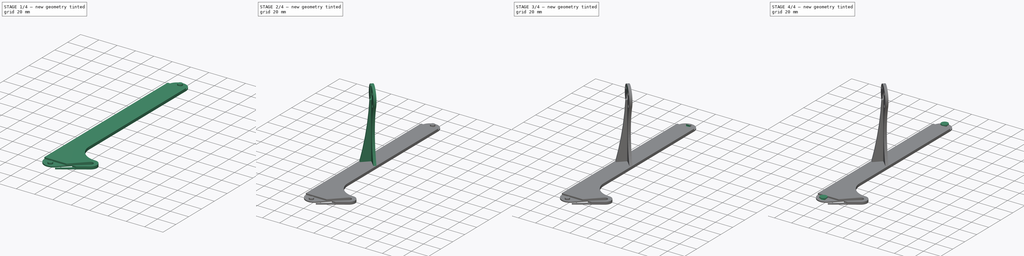
[diagram: build sequence overview — one tinted view per stage of 4, left to right]
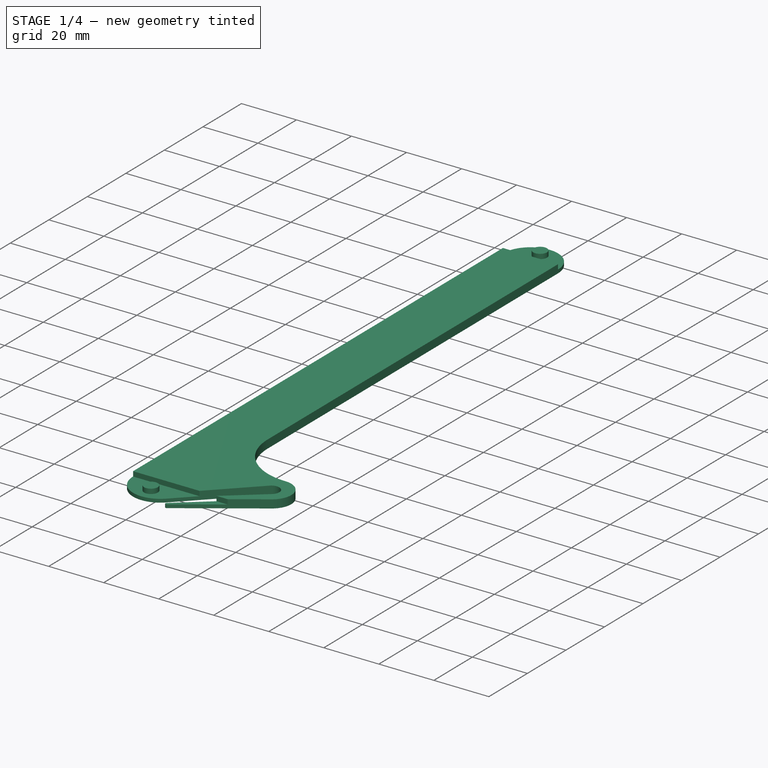
[diagram: stage 1 of 4 — iso view after this stage's code; geometry added in this stage tinted green]
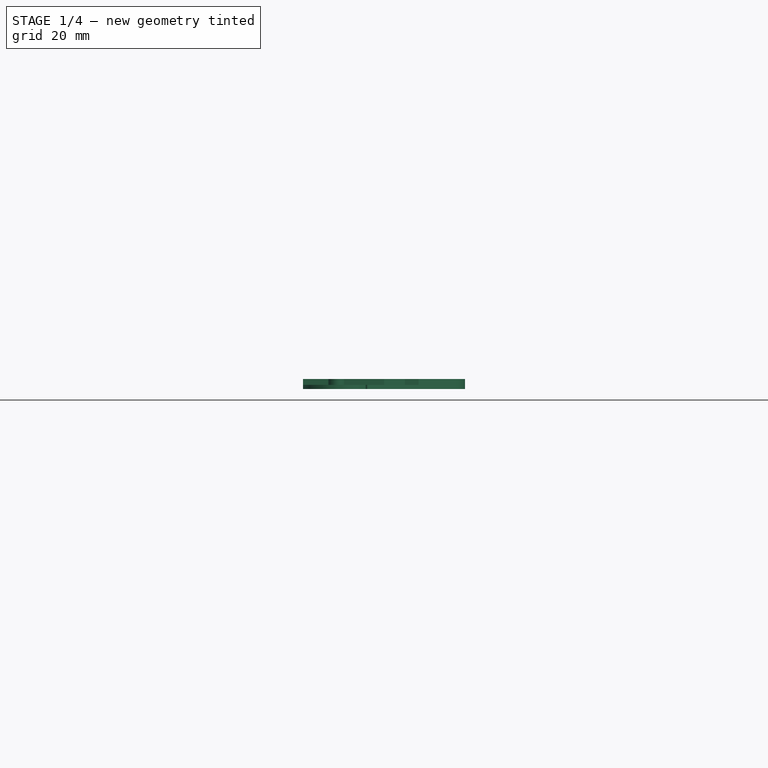
[diagram: stage 1 of 4 — front view after this stage's code; geometry added in this stage tinted green]
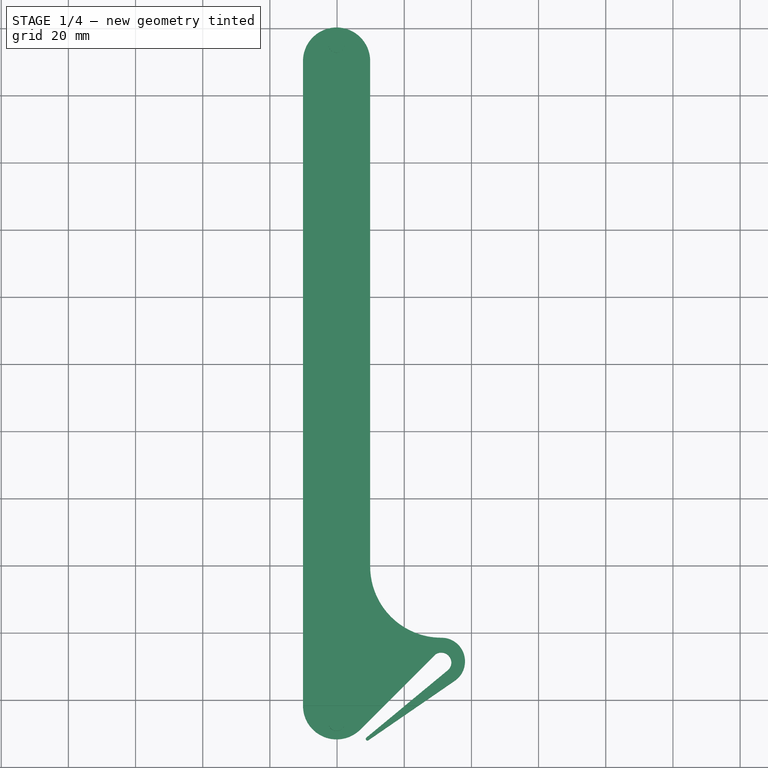
[diagram: stage 1 of 4 — top view after this stage's code; geometry added in this stage tinted green]
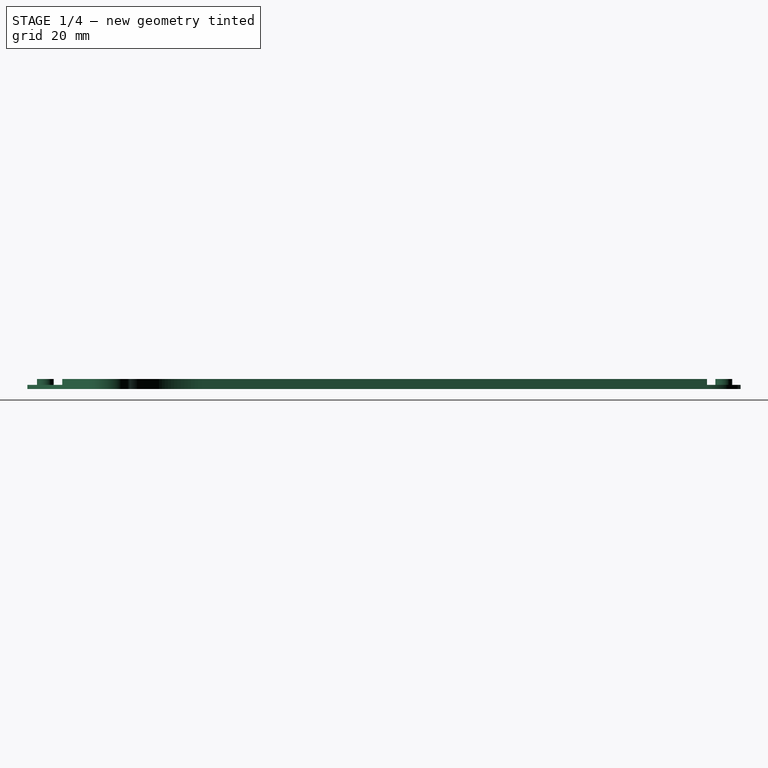
[diagram: stage 1 of 4 — right view after this stage's code; geometry added in this stage tinted green]
FCSTD DOCUMENT  (FreeCAD 0.16R6706 (Git))
Label: montant_00
License: All rights reserved
LicenseURL: http://en.wikipedia.org/wiki/All_rights_reserved
objects: Sketcher::SketchObject×11, PartDesign::Pocket×7, PartDesign::Pad×4
note: 33 computed .brp shape members not serialized (recipe doc carries the construction recipe); baked Part::Feature solids carry a one-line shape summary decoded from their .brp

FEATURE [Sketcher::SketchObject] Sketch
  sketch-geometry (16):
    g0: LineSegment StartX=69.8529 StartY=90.3023 StartZ=0 EndX=69.8529 EndY=-60.2396 EndZ=0
    g1: LineSegment StartX=49.8529 StartY=-101.698 StartZ=0 EndX=49.8529 EndY=90.3023 EndZ=0
    g2: ArcOfCircle CenterX=59.8529 CenterY=90.3023 CenterZ=0 NormalX=0 NormalY=0 NormalZ=1 Radius=10 StartAngle=6.28319 EndAngle=9.42478
    g3: ArcOfCircle CenterX=59.8529 CenterY=-101.698 CenterZ=0 NormalX=0 NormalY=0 NormalZ=1 Radius=10 StartAngle=3.14159 EndAngle=5.49779
    g4: LineSegment [constr] StartX=69.8529 StartY=-60.2396 StartZ=0 EndX=91.0776 EndY=-81.4643 EndZ=0
    g5: LineSegment StartX=66.924 StartY=-108.769 StartZ=0 EndX=89.2285 EndY=-86.4643 EndZ=0
    g6: LineSegment StartX=68.721 StartY=-111.171 StartZ=0 EndX=92.8225 EndY=-91.2688 EndZ=0
    g7: LineSegment [constr] StartX=66.924 StartY=-108.769 StartZ=0 EndX=68.721 EndY=-111.171 EndZ=0
    g8: LineSegment [constr] StartX=66.0255 StartY=-107.568 StartZ=0 EndX=91.0255 EndY=-88.8666 EndZ=0
    g9: LineSegment [constr] StartX=89.2285 StartY=-86.4643 StartZ=0 EndX=92.8225 EndY=-91.2688 EndZ=0
    g10: ArcOfCircle CenterX=91.0255 CenterY=-88.8666 CenterZ=0 NormalX=0 NormalY=0 NormalZ=1 Radius=3 StartAngle=5.35464 EndAngle=8.49623
    g11: LineSegment StartX=69.3235 StartY=-111.969 StartZ=0 EndX=95.0544 EndY=-94.2525 EndZ=0
    g12: ArcOfCircle CenterX=91.0776 CenterY=-60.2396 CenterZ=0 NormalX=0 NormalY=0 NormalZ=1 Radius=21.2247 StartAngle=3.14159 EndAngle=4.71239
    g13: LineSegment [constr] StartX=92.8225 StartY=-91.2688 StartZ=0 EndX=95.0544 EndY=-94.2525 EndZ=0
    g14: ArcOfCircle CenterX=91.0776 CenterY=-88.4768 CenterZ=0 NormalX=0 NormalY=0 NormalZ=1 Radius=7.01245 StartAngle=5.31538 EndAngle=7.85398
    g15: ArcOfCircle CenterX=69.0396 CenterY=-111.557 CenterZ=0 NormalX=0 NormalY=0 NormalZ=1 Radius=0.500476 StartAngle=2.26105 EndAngle=5.31538
  constraints (48):
    c: Vertical(g0)
    c: Vertical(g1)
    c: Radius(g2) = 10
    c: Coincident(g2,g1)
    c: Coincident(g2,g0)
    c: Radius(g3) = 10
    c: Coincident(g1,g3)
    c: DistanceY(g3,g2) = 192
    c: Coincident(g3,g5)
    c: Coincident(g4,g0)
    c: Angle(g5,g1) = 0.785398
    c: Tangent(g3,g1)
    c: Tangent(g2,g0)
    c: Tangent(g2,g1)
    c: Tangent(g5,g3)
    c: Coincident(g7,g3)
    c: Angle(g7,g8) = 1.5708
    c: PointOnObject(g8,g9)
    c: Angle(g8,g9) = 1.5708
    c: Distance(g6,g8) = 3
    c: Coincident(g6,g9)
    c: PointOnObject(g10,g5)
    c: Distance(g6,g10) = 6
    c: Coincident(g10,g8)
    c: Coincident(g10,g6)
    c: DistanceX(g8,g8) = 25
    c: PointOnObject(g8,g7)
    c: Distance(g8,g3) = 1.5
    c: Distance(g3,g7) = 3
    c: Coincident(g5,g9)
    c: Angle(g4,g0) = 2.35619
    c: Coincident(g12,g0)
    c: Angle(g11,g6) = 0.0872665
    c: PointOnObject(g13,g11)
    c: Coincident(g13,g6)
    c: Parallel(g13,g9)
    c: PointOnObject(g11,g13)
    c: Coincident(g4,g12)
    c: Tangent(g12,g0)
    c: Coincident(g14,g4)
    c: Coincident(g14,g11)
    c: Tangent(g12,g14)
    c: Tangent(g11,g14)
    c: Tangent(g6,g15) = 1.5708
    c: Tangent(g11,g15) = -1.5708
    c: Coincident(g6,g7)
    c: Distance(g6,g11) = 1
    c: DistanceY(g5,g4) = 5
FEATURE [PartDesign::Pad] Pad
  Length = 3
  Length2 = 100
  Sketch = -> Sketch
  Type = 0
FEATURE [Sketcher::SketchObject] Sketch001
  ExternalGeometry = -> [Pad]
  Placement = pos=(0,0,3) rot=(0,0,1;0rad)
  Support = -> Pad [Face13]
  sketch-geometry (3):
    g0: ArcOfCircle CenterX=59.8529 CenterY=90.3023 CenterZ=0 NormalX=0 NormalY=0 NormalZ=1 Radius=10 StartAngle=6.28319 EndAngle=9.42478
    g1: LineSegment StartX=49.8529 StartY=90.3023 StartZ=0 EndX=69.8529 EndY=90.3023 EndZ=0
    g2: Circle CenterX=59.8529 CenterY=95.3023 CenterZ=0 NormalX=0 NormalY=0 NormalZ=1 Radius=2.5
  constraints (8):
    c: Coincident(g0,g-3)
    c: Coincident(g0,g-3)
    c: Coincident(g-3,g0)
    c: Coincident(g1,g0)
    c: Coincident(g1,g0)
    c: DistanceY(g0,g2) = 5
    c: DistanceX(g2,g0) = 10
    c: Radius(g2) = 2.5
FEATURE [PartDesign::Pocket] Pocket
  Length = 1.75
  Sketch = -> Sketch001
  Type = 0
FEATURE [Sketcher::SketchObject] Sketch002
  ExternalGeometry = -> [Pocket]
  Placement = pos=(0,0,3) rot=(0,0,1;0rad)
  Support = -> Pocket [Face4]
  sketch-geometry (5):
    g0: LineSegment StartX=46.1193 StartY=-101.698 StartZ=0 EndX=86.9163 EndY=-101.698 EndZ=0
    g1: LineSegment StartX=86.9163 StartY=-101.698 StartZ=0 EndX=86.9163 EndY=-116.42 EndZ=0
    g2: LineSegment StartX=86.9163 StartY=-116.42 StartZ=0 EndX=46.1193 EndY=-116.42 EndZ=0
    g3: LineSegment StartX=46.1193 StartY=-116.42 StartZ=0 EndX=46.1193 EndY=-101.698 EndZ=0
    g4: Circle CenterX=59.8529 CenterY=-106.698 CenterZ=0 NormalX=0 NormalY=0 NormalZ=1 Radius=2.5
  constraints (12):
    c: Coincident(g0,g1)
    c: Coincident(g1,g2)
    c: Coincident(g2,g3)
    c: Coincident(g3,g0)
    c: Horizontal(g0)
    c: Horizontal(g2)
    c: Vertical(g1)
    c: Vertical(g3)
    c: PointOnObject(g-3,g0)
    c: DistanceY(g4,g-3) = 5
    c: DistanceX(g-3,g4) = 10
    c: Radius(g4) = 2.5
FEATURE [PartDesign::Pocket] Pocket001
  Length = 1.75
  Sketch = -> Sketch002
  Type = 0
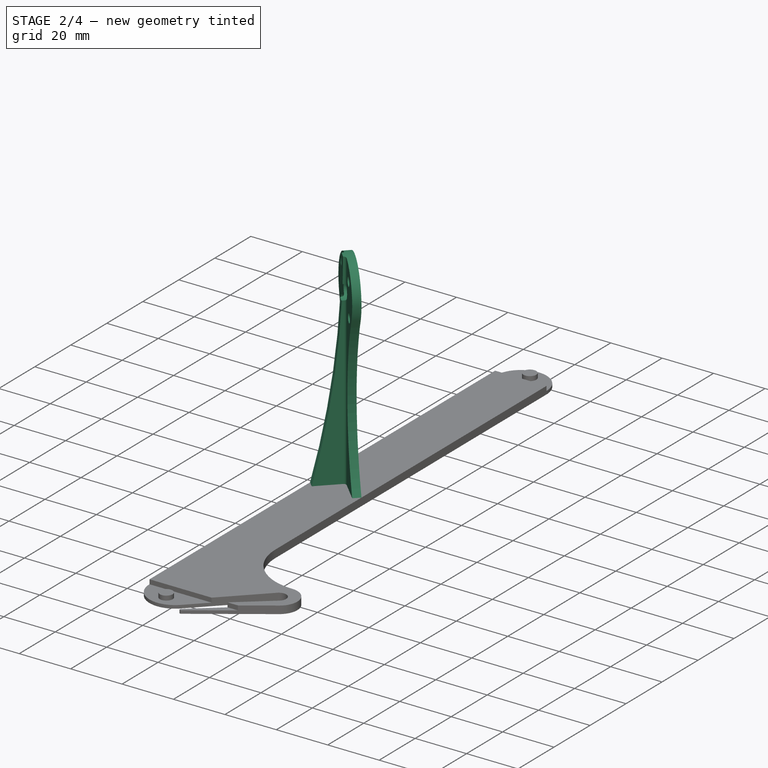
[diagram: stage 2 of 4 — iso view after this stage's code; geometry added in this stage tinted green]
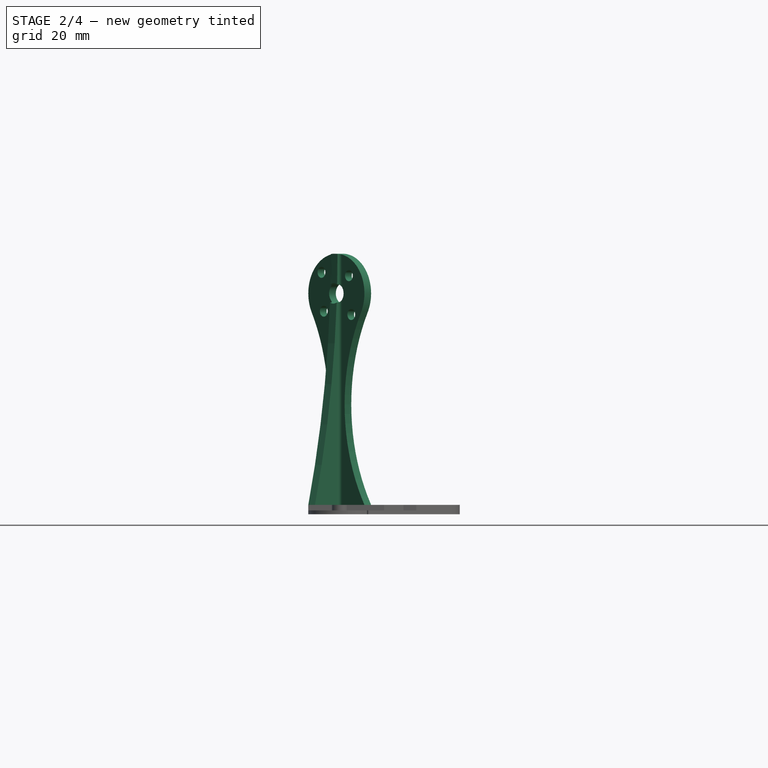
[diagram: stage 2 of 4 — front view after this stage's code; geometry added in this stage tinted green]
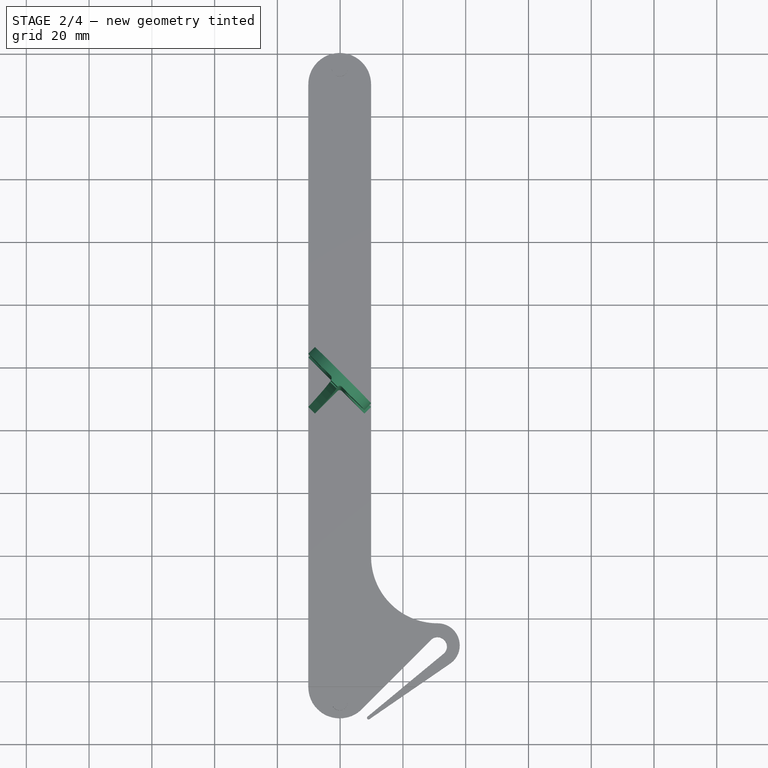
[diagram: stage 2 of 4 — top view after this stage's code; geometry added in this stage tinted green]
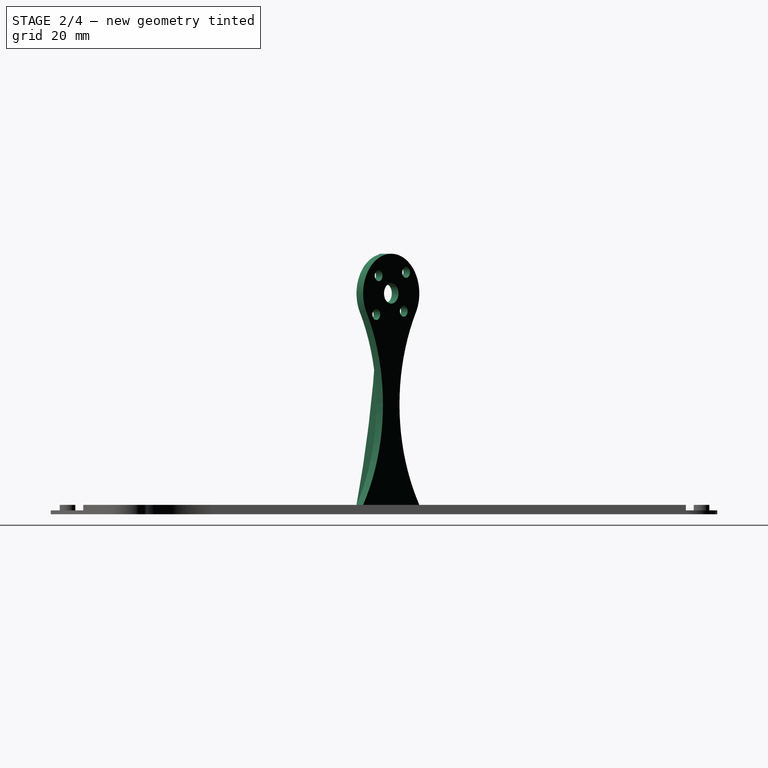
[diagram: stage 2 of 4 — right view after this stage's code; geometry added in this stage tinted green]
FEATURE [Sketcher::SketchObject] Sketch007
  ExternalGeometry = -> [Pocket001]
  Placement = pos=(0,0,3) rot=(0,0,1;0rad)
  Support = -> Pocket001 [Face4]
  sketch-geometry (14):
    g0: LineSegment StartX=51.9742 StartY=5.36292 StartZ=0 EndX=69.8529 EndY=-12.5158 EndZ=0
    g1: LineSegment StartX=69.8529 StartY=-12.5158 StartZ=0 EndX=67.7316 EndY=-14.6371 EndZ=0
    g2: LineSegment StartX=67.7316 StartY=-14.6371 StartZ=0 EndX=60.56 EndY=-7.46551 EndZ=0
    g3: LineSegment StartX=49.8529 StartY=3.2416 StartZ=0 EndX=51.9742 EndY=5.36292 EndZ=0
    g4: GeomPoint [constr] X=49.8529 Y=-5.69774 Z=0
    g5: LineSegment StartX=49.8529 StartY=-12.5158 StartZ=0 EndX=57.0245 EndY=-5.34419 EndZ=0
    g6: LineSegment StartX=51.9742 StartY=-14.6371 StartZ=0 EndX=59.1458 EndY=-7.46551 EndZ=0
    g7: LineSegment StartX=49.8529 StartY=-12.5158 StartZ=0 EndX=51.9742 EndY=-14.6371 EndZ=0
    g8: LineSegment [constr] StartX=50.9136 StartY=-13.5764 StartZ=0 EndX=60.9136 EndY=-3.57642 EndZ=0
    g9: GeomPoint [constr] X=58.7922 Y=-5.69774 Z=0
    g10: LineSegment [constr] StartX=49.8529 StartY=-5.69774 StartZ=0 EndX=58.7922 EndY=-5.69774 EndZ=0
    g11: LineSegment StartX=57.0245 StartY=-3.92998 StartZ=0 EndX=49.8529 EndY=3.2416 EndZ=0
    g12: ArcOfCircle CenterX=59.8529 CenterY=-8.17262 CenterZ=0 NormalX=0 NormalY=0 NormalZ=1 Radius=1 StartAngle=0.785398 EndAngle=2.35619
    g13: ArcOfCircle CenterX=56.3174 CenterY=-4.63708 CenterZ=0 NormalX=0 NormalY=0 NormalZ=1 Radius=1 StartAngle=5.49779 EndAngle=7.06858
  constraints (36):
    c: Coincident(g0,g1)
    c: Coincident(g1,g2)
    c: Coincident(g11,g3)
    c: Coincident(g3,g0)
    c: PointOnObject(g4,g-3)
    c: DistanceY(g-3,g-3) = 192
    c: DistanceY(g4,g-3) = 96
    c: PointOnObject(g11,g-3)
    c: Parallel(g0,g2)
    c: Parallel(g1,g3)
    c: Angle(g-3,g0) = 0.785398
    c: Angle(g3,g0) = 1.5708
    c: PointOnObject(g0,g-4)
    c: Coincident(g5,g7)
    c: Coincident(g6,g7)
    c: Symmetric(g5,g6,g8)
    c: Parallel(g6,g5)
    c: Distance(g5,g6) = 3
    c: Distance(g1,g0) = 3
    c: PointOnObject(g5,g-3)
    c: PointOnObject(g9,g2)
    c: PointOnObject(g9,g8)
    c: Symmetric(g1,g11,g8)
    c: Coincident(g10,g9)
    c: Coincident(g10,g4)
    c: Angle(g-3,g10) = 1.5708
    c: Tangent(g2,g11)
    c: Tangent(g2,g12) = -1.5708
    c: Tangent(g6,g12) = 1.5708
    c: Tangent(g11,g13) = -1.5708
    c: Tangent(g5,g13) = -1.5708
    c: Radius(g12) = 1
    c: Radius(g13) = 1
    c: Symmetric(g6,g5,g8)
    c: PointOnObject(g8,g7)
    c: PointOnObject(g8,g0)
FEATURE [PartDesign::Pad] Pad001
  Length = 80
  Length2 = 100
  Sketch = -> Sketch007
  Type = 0
FEATURE [Sketcher::SketchObject] Sketch004
  ExternalGeometry = -> [Pad001]
  Placement = pos=(28.6686,28.6686,0) rot=(0.281085,0.678598,0.678598;2.59356rad)
  Support = -> Pad001 [Face32]
  sketch-geometry (17):
    g0: LineSegment StartX=-75.5395 StartY=92.3788 StartZ=0 EndX=-18.7022 EndY=92.3788 EndZ=0
    g1: LineSegment StartX=-18.7022 StartY=92.3788 StartZ=0 EndX=-18.7022 EndY=3 EndZ=0
    g2: LineSegment StartX=-18.7022 StartY=3 StartZ=0 EndX=-32.9592 EndY=3 EndZ=0
    g3: LineSegment StartX=-75.5395 StartY=3 StartZ=0 EndX=-75.5395 EndY=92.3788 EndZ=0
    g4: ArcOfCircle CenterX=-45.6013 CenterY=70.3579 CenterZ=0 NormalX=0 NormalY=0 NormalZ=1 Radius=12.6421 StartAngle=5.78867 EndAngle=9.91929
    g5: ArcOfCircle CenterX=-111.168 CenterY=35.004 CenterZ=0 NormalX=0 NormalY=0 NormalZ=1 Radius=61.8492 StartAngle=5.73931 EndAngle=6.7777
    g6: ArcOfCircle CenterX=19.9659 CenterY=35.004 CenterZ=0 NormalX=0 NormalY=0 NormalZ=1 Radius=61.8491 StartAngle=2.64708 EndAngle=3.68546
    g7: Circle CenterX=-45.6013 CenterY=70.3579 CenterZ=0 NormalX=0 NormalY=0 NormalZ=1 Radius=3.25
    g8: Circle CenterX=-39.9445 CenterY=64.701 CenterZ=0 NormalX=0 NormalY=0 NormalZ=1 Radius=1.75
    g9: Circle CenterX=-38.8838 CenterY=77.0754 CenterZ=0 NormalX=0 NormalY=0 NormalZ=1 Radius=1.75
    g10: Circle CenterX=-51.2582 CenterY=76.0147 CenterZ=0 NormalX=0 NormalY=0 NormalZ=1 Radius=1.75
    g11: Circle CenterX=-52.3188 CenterY=63.6403 CenterZ=0 NormalX=0 NormalY=0 NormalZ=1 Radius=1.75
    g12: LineSegment [constr] StartX=-45.6013 StartY=70.3579 StartZ=0 EndX=-38.8838 EndY=77.0754 EndZ=0
    g13: LineSegment [constr] StartX=-45.6013 StartY=70.3579 StartZ=0 EndX=-52.3188 EndY=63.6403 EndZ=0
    g14: LineSegment [constr] StartX=-45.6013 StartY=70.3579 StartZ=0 EndX=-39.9445 EndY=64.701 EndZ=0
    g15: LineSegment [constr] StartX=-45.6013 StartY=70.3579 StartZ=0 EndX=-51.2582 EndY=76.0147 EndZ=0
    g16: LineSegment StartX=-58.2434 StartY=3 StartZ=0 EndX=-75.5395 EndY=3 EndZ=0
  constraints (47):
    c: Coincident(g0,g1)
    c: Coincident(g1,g2)
    c: Coincident(g16,g3)
    c: Coincident(g3,g0)
    c: Horizontal(g0)
    c: Horizontal(g2)
    c: Vertical(g1)
    c: Vertical(g3)
    c: Coincident(g5,g4)
    c: Coincident(g6,g4)
    c: DistanceY(g4,g4) = 6
    c: DistanceY(g4,g4) = 6
    c: Tangent(g5,g4)
    c: Tangent(g6,g4)
    c: Coincident(g7,g4)
    c: Radius(g7) = 3.25
    c: Radius(g8) = 1.75
    c: Equal(g8,g9) = 1.75
    c: Equal(g8,g11) = 1.75
    c: Coincident(g13,g15)
    c: Coincident(g13,g4)
    c: Coincident(g13,g12)
    c: Coincident(g13,g14)
    c: Coincident(g14,g8)
    c: Coincident(g9,g12)
    c: Coincident(g10,g15)
    c: Coincident(g11,g13)
    c: Angle(g13,g14) = 1.5708
    c: Angle(g14,g12) = 1.5708
    c: Angle(g12,g15) = 1.5708
    c: Distance(g12) = 9.5
    c: Distance(g13) = 9.5
    c: Distance(g15) = 8
    c: Distance(g14) = 8
    c: PointOnObject(g2,g6)
    c: PointOnObject(g16,g5)
    c: Tangent(g2,g16)
    c: Tangent(g4,g-3)
    c: Tangent(g4,g-4)
    c: Tangent(g4,g-5)
    c: Angle(g-4,g15) = 0.785398
    c: Radius(g10) = 1.75
    c: Coincident(g5,g-4)
    c: Coincident(g16,g5)
    c: Coincident(g6,g-5)
    c: Distance(g0) = 56.8373
    c: DistanceX(g-5,g0) = 14.257
FEATURE [PartDesign::Pocket] Pocket002
  Length = 10
  Sketch = -> Sketch004
  Type = 0
FEATURE [Sketcher::SketchObject] Sketch005
  Placement = pos=(33.3057,-33.3057,0) rot=(0.862856,0.357407,0.357407;1.71777rad)
  Support = -> Pocket002 [Face26]
  sketch-geometry (4):
    g0: LineSegment StartX=23.5109 StartY=83.5 StartZ=0 EndX=26.4013 EndY=3 EndZ=0
    g1: ArcOfCircle CenterX=-283.339 CenterY=82.9107 CenterZ=0 NormalX=0 NormalY=0 NormalZ=1 Radius=319.882 StartAngle=6.0307 EndAngle=6.28319
    g2: LineSegment StartX=36.5435 StartY=82.9107 StartZ=0 EndX=36.5435 EndY=83.5 EndZ=0
    g3: LineSegment StartX=36.5435 StartY=83.5 StartZ=0 EndX=23.5109 EndY=83.5 EndZ=0
  constraints (7):
    c: Coincident(g1,g0)
    c: Coincident(g2,g3)
    c: Horizontal(g3)
    c: Vertical(g2)
    c: Coincident(g0,g3)
    c: Coincident(g1,g2)
    c: Tangent(g1,g2)
FEATURE [PartDesign::Pocket] Pocket003
  Length = 10
  Sketch = -> Sketch005
  Type = 0
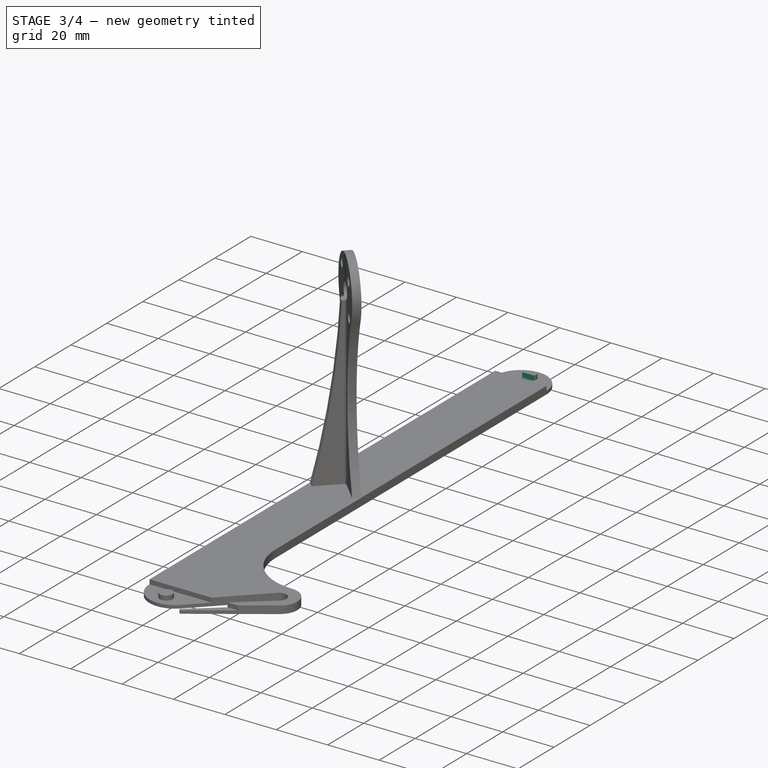
[diagram: stage 3 of 4 — iso view after this stage's code; geometry added in this stage tinted green]
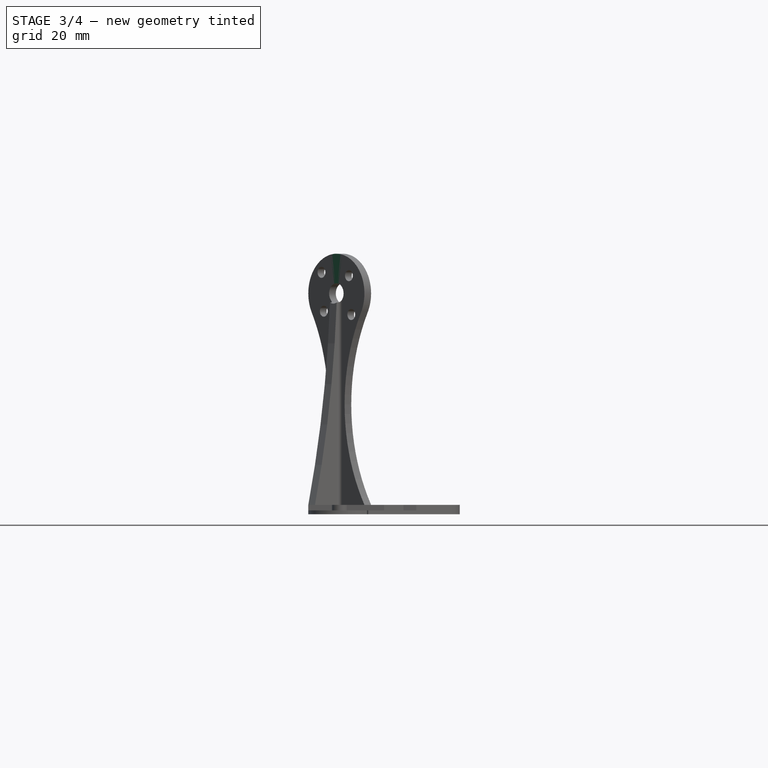
[diagram: stage 3 of 4 — front view after this stage's code; geometry added in this stage tinted green]
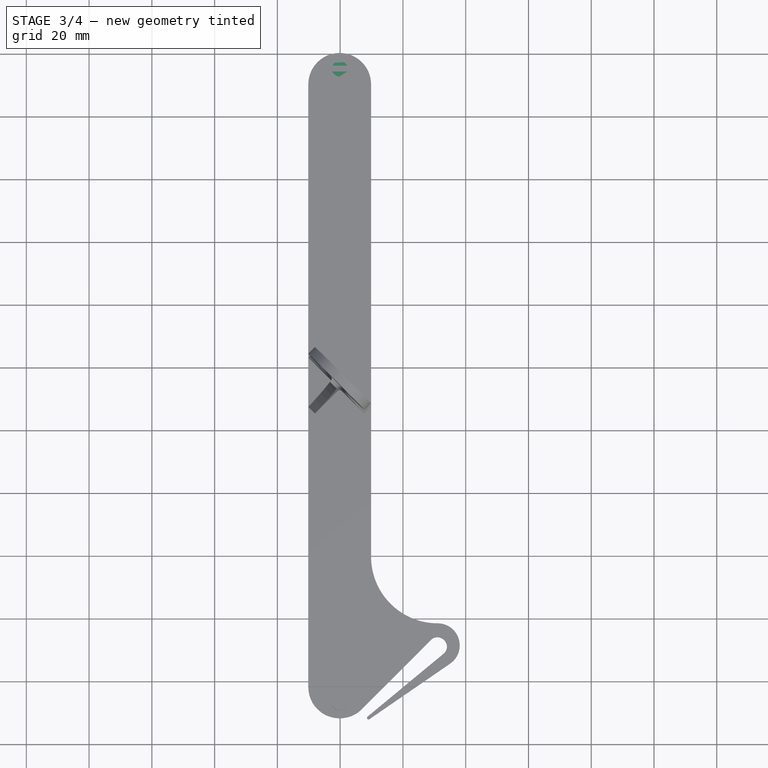
[diagram: stage 3 of 4 — top view after this stage's code; geometry added in this stage tinted green]
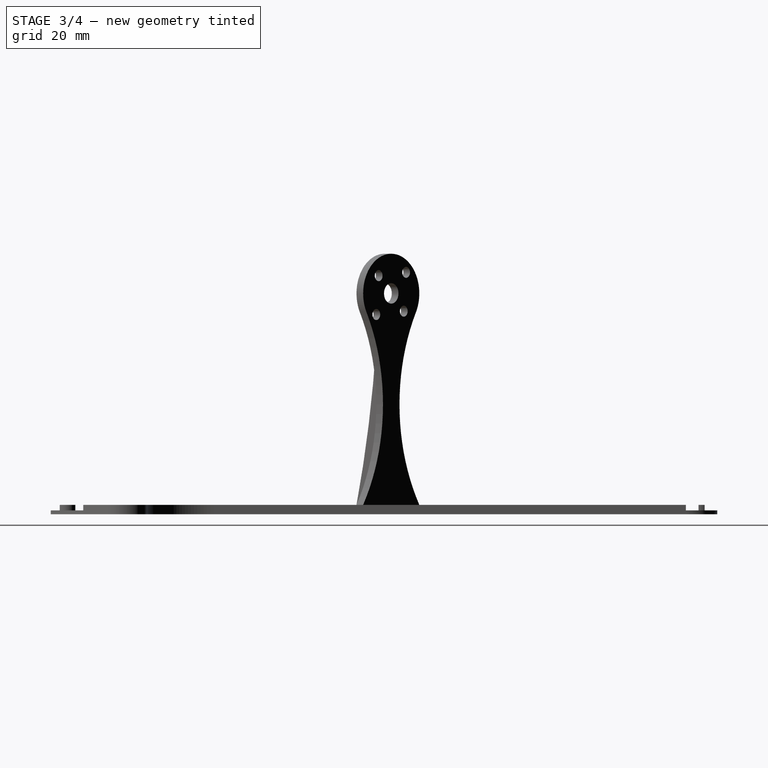
[diagram: stage 3 of 4 — right view after this stage's code; geometry added in this stage tinted green]
FEATURE [Sketcher::SketchObject] Sketch006
  ExternalGeometry = -> [Pocket003]
  Placement = pos=(26.5473,26.5473,0) rot=(0.862856,-0.357407,-0.357407;1.71777rad)
  Support = -> Pocket003 [Face30]
  sketch-geometry (4):
    g0: LineSegment StartX=31.3897 StartY=85.639 StartZ=0 EndX=59.7776 EndY=85.639 EndZ=0
    g1: LineSegment StartX=59.7776 StartY=85.639 StartZ=0 EndX=59.7776 EndY=70.3579 EndZ=0
    g2: LineSegment StartX=59.7776 StartY=70.3579 StartZ=0 EndX=31.3897 EndY=70.3579 EndZ=0
    g3: LineSegment StartX=31.3897 StartY=70.3579 StartZ=0 EndX=31.3897 EndY=85.639 EndZ=0
  constraints (9):
    c: Coincident(g0,g1)
    c: Coincident(g1,g2)
    c: Coincident(g2,g3)
    c: Coincident(g3,g0)
    c: Horizontal(g0)
    c: Horizontal(g2)
    c: Vertical(g1)
    c: Vertical(g3)
    c: PointOnObject(g-3,g2)
FEATURE [PartDesign::Pocket] Pocket004
  Length = 5
  Reversed = true
  Sketch = -> Sketch006
  Type = 0
FEATURE [Sketcher::SketchObject] Sketch008
  ExternalGeometry = -> [Pocket004]
  Placement = pos=(0,0,3) rot=(0,0,1;0rad)
  Support = -> Pocket004 [Face48]
  sketch-geometry (7):
    g0: LineSegment StartX=57.5432 StartY=96.259 StartZ=0 EndX=62.1626 EndY=96.259 EndZ=0
    g1: LineSegment StartX=57.5432 StartY=94.3455 StartZ=0 EndX=62.1626 EndY=94.3455 EndZ=0
    g2: LineSegment [constr] StartX=57.3529 StartY=95.3023 StartZ=0 EndX=62.3529 EndY=95.3023 EndZ=0
    g3: LineSegment [constr] StartX=59.8529 StartY=95.3023 StartZ=0 EndX=57.5432 EndY=96.259 EndZ=0
    g4: LineSegment [constr] StartX=59.8529 StartY=95.3023 StartZ=0 EndX=57.5432 EndY=94.3455 EndZ=0
    g5: ArcOfCircle CenterX=59.8529 CenterY=95.3023 CenterZ=0 NormalX=0 NormalY=0 NormalZ=1 Radius=2.5 StartAngle=0.392699 EndAngle=2.74889
    g6: ArcOfCircle CenterX=59.8529 CenterY=95.3023 CenterZ=0 NormalX=0 NormalY=0 NormalZ=1 Radius=2.5 StartAngle=3.53429 EndAngle=5.89049
  constraints (24):
    c: Radius(g-3) = 2.5
    c: PointOnObject(g0,g-3)
    c: PointOnObject(g1,g-3)
    c: PointOnObject(g0,g-3)
    c: PointOnObject(g1,g-3)
    c: Parallel(g1,g-4)
    c: Parallel(g0,g1)
    c: PointOnObject(g-3,g2)
    c: PointOnObject(g2,g-3)
    c: PointOnObject(g2,g-3)
    c: Parallel(g2,g0)
    c: Symmetric(g1,g0,g2)
    c: Symmetric(g0,g1,g2)
    c: Coincident(g4,g3)
    c: Coincident(g-3,g3)
    c: Coincident(g0,g3)
    c: Coincident(g1,g4)
    c: Angle(g3,g4) = 0.785398
    c: Coincident(g5,g0)
    c: Coincident(g5,g0)
    c: Radius(g5) = 2.5
    c: Radius(g6) = 2.5
    c: Coincident(g6,g1)
    c: Coincident(g6,g1)
FEATURE [PartDesign::Pocket] Pocket005
  Length = 1.75
  Sketch = -> Sketch008
  Type = 0
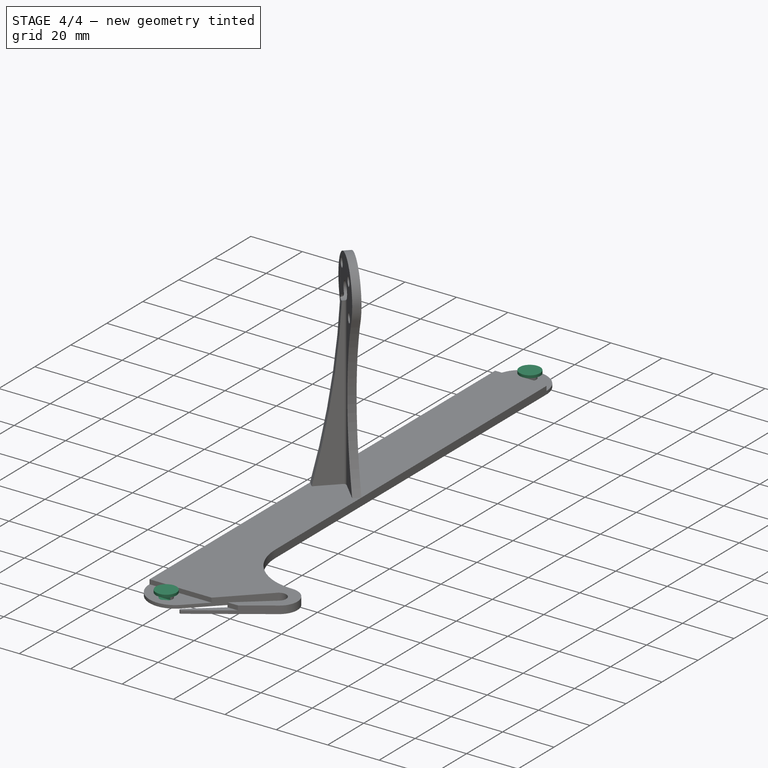
[diagram: stage 4 of 4 — iso view after this stage's code; geometry added in this stage tinted green]
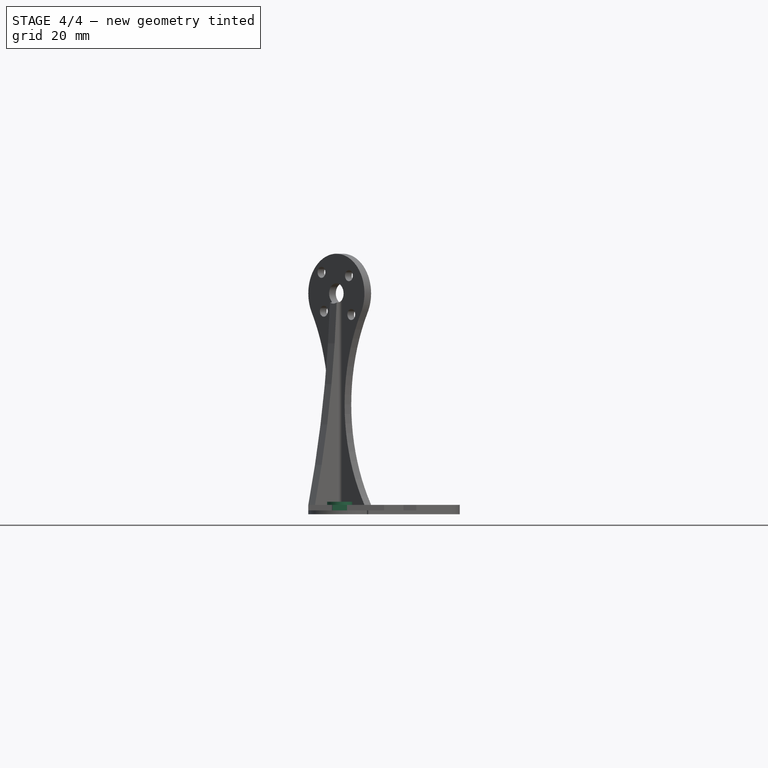
[diagram: stage 4 of 4 — front view after this stage's code; geometry added in this stage tinted green]
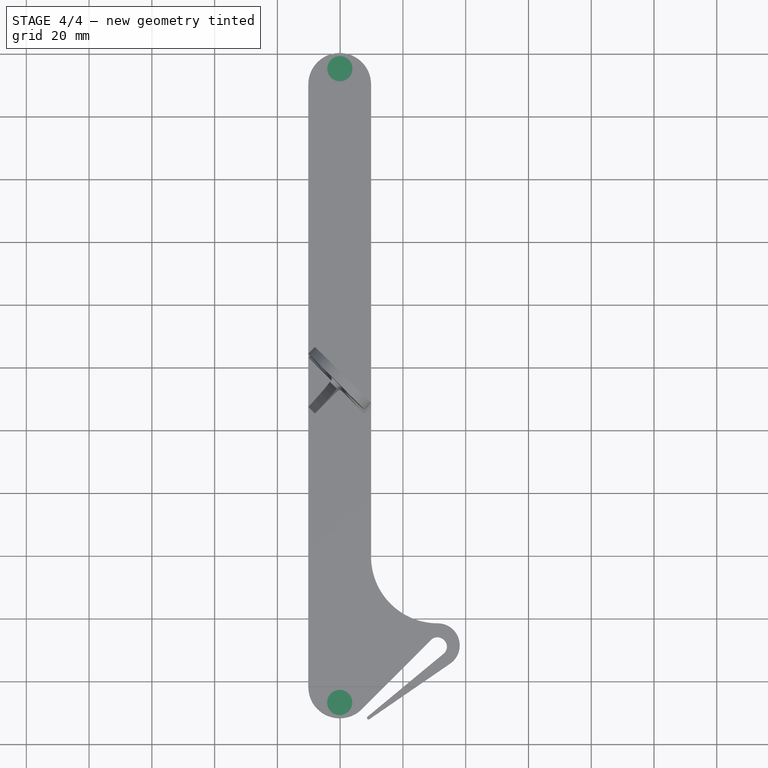
[diagram: stage 4 of 4 — top view after this stage's code; geometry added in this stage tinted green]
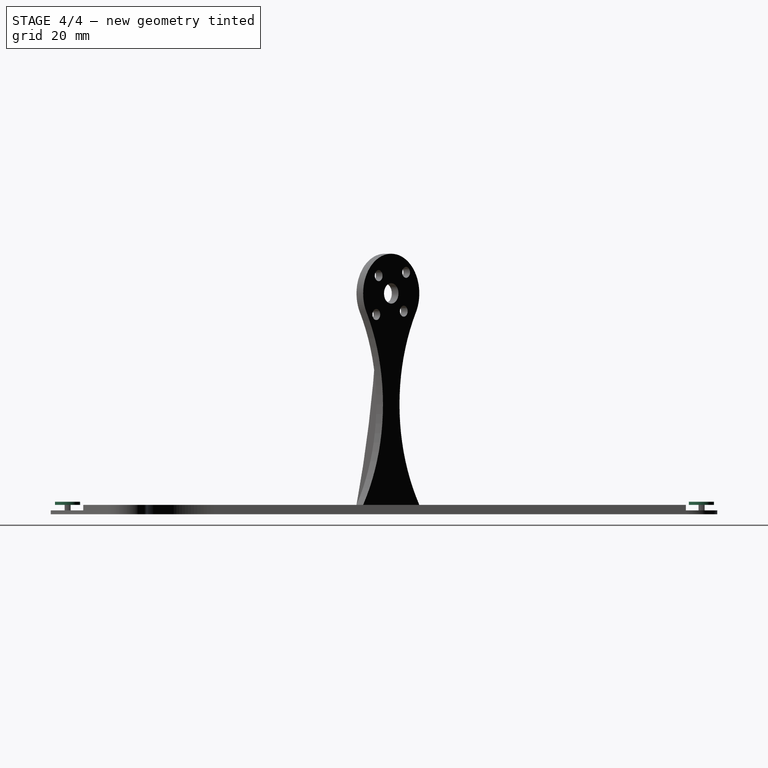
[diagram: stage 4 of 4 — right view after this stage's code; geometry added in this stage tinted green]
FEATURE [Sketcher::SketchObject] Sketch009
  ExternalGeometry = -> [Pocket005]
  Placement = pos=(0,0,3) rot=(0,0,1;0rad)
  Support = -> Pocket005 [Face52]
  sketch-geometry (1):
    g0: Circle CenterX=59.9029 CenterY=95.2697 CenterZ=0 NormalX=0 NormalY=0 NormalZ=1 Radius=4
  constraints (1):
    c: Radius(g0) = 4
FEATURE [PartDesign::Pad] Pad002
  Length = 1
  Length2 = 100
  Sketch = -> Sketch009
  Type = 0
FEATURE [Sketcher::SketchObject] Sketch010
  ExternalGeometry = -> [Pad002]
  Placement = pos=(0,0,3) rot=(0,0,1;0rad)
  Support = -> Pad002 [Face29]
  sketch-geometry (7):
    g0: LineSegment StartX=57.5432 StartY=-105.741 StartZ=0 EndX=62.1626 EndY=-105.741 EndZ=0
    g1: LineSegment StartX=57.5432 StartY=-107.654 StartZ=0 EndX=62.1626 EndY=-107.654 EndZ=0
    g2: LineSegment [constr] StartX=57.3529 StartY=-106.698 StartZ=0 EndX=62.3529 EndY=-106.698 EndZ=0
    g3: LineSegment [constr] StartX=57.5432 StartY=-105.741 StartZ=0 EndX=62.1626 EndY=-107.654 EndZ=0
    g4: LineSegment [constr] StartX=57.5432 StartY=-107.654 StartZ=0 EndX=62.1626 EndY=-105.741 EndZ=0
    g5: ArcOfCircle CenterX=59.8529 CenterY=-106.698 CenterZ=0 NormalX=0 NormalY=0 NormalZ=1 Radius=2.5 StartAngle=0.392699 EndAngle=2.74889
    g6: ArcOfCircle CenterX=59.8529 CenterY=-106.698 CenterZ=0 NormalX=0 NormalY=0 NormalZ=1 Radius=2.5 StartAngle=3.53429 EndAngle=5.89049
  constraints (23):
    c: Parallel(g0,g-4)
    c: Parallel(g2,g0)
    c: Parallel(g1,g2)
    c: PointOnObject(g-3,g2)
    c: Symmetric(g0,g1,g2)
    c: Symmetric(g0,g1,g2)
    c: PointOnObject(g0,g-3)
    c: PointOnObject(g1,g-3)
    c: PointOnObject(g2,g-3)
    c: PointOnObject(g2,g-3)
    c: PointOnObject(g-3,g4)
    c: PointOnObject(g-3,g3)
    c: Coincident(g3,g0)
    c: Coincident(g0,g4)
    c: Coincident(g1,g4)
    c: Coincident(g1,g3)
    c: Angle(g3,g4) = 0.785398
    c: Coincident(g5,g0)
    c: Coincident(g5,g0)
    c: Radius(g5) = 2.5
    c: Coincident(g6,g1)
    c: Coincident(g6,g1)
    c: Radius(g6) = 2.5
FEATURE [PartDesign::Pocket] Pocket006
  Length = 1.75
  Sketch = -> Sketch010
  Type = 0
FEATURE [Sketcher::SketchObject] Sketch011
  ExternalGeometry = -> [Pocket006]
  Placement = pos=(0,0,3) rot=(0,0,1;0rad)
  Support = -> Pocket006 [Face33]
  sketch-geometry (1):
    g0: Circle CenterX=59.8529 CenterY=-106.698 CenterZ=0 NormalX=0 NormalY=0 NormalZ=1 Radius=4
  constraints (2):
    c: Coincident(g0,g-3)
    c: Radius(g0) = 4
FEATURE [PartDesign::Pad] Pad003
  Length = 1
  Length2 = 100
  Sketch = -> Sketch011
  Type = 0
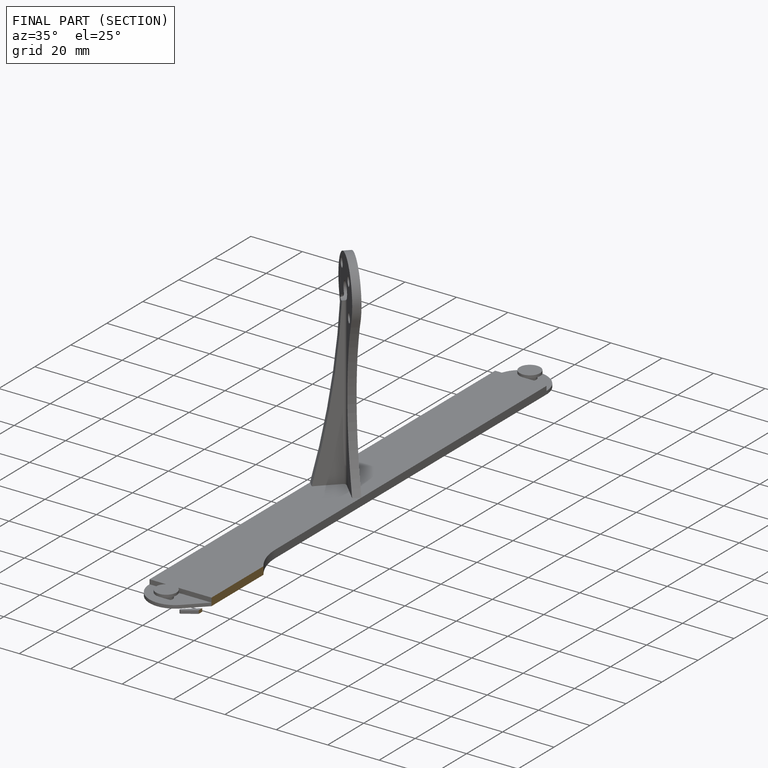
[diagram: finished part — half-section view (interior)]
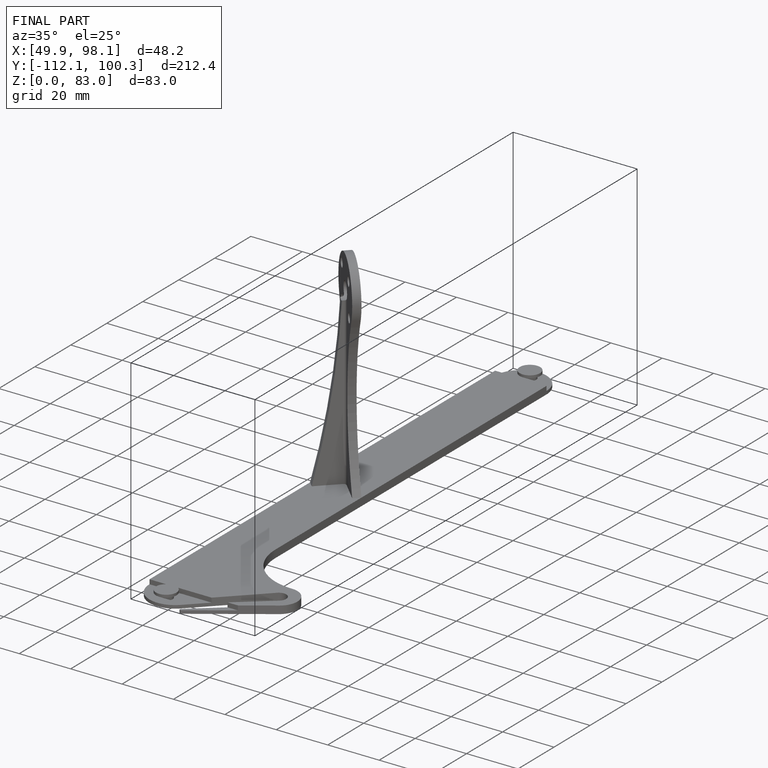
[diagram: finished part — iso view with bounding-box wireframe]
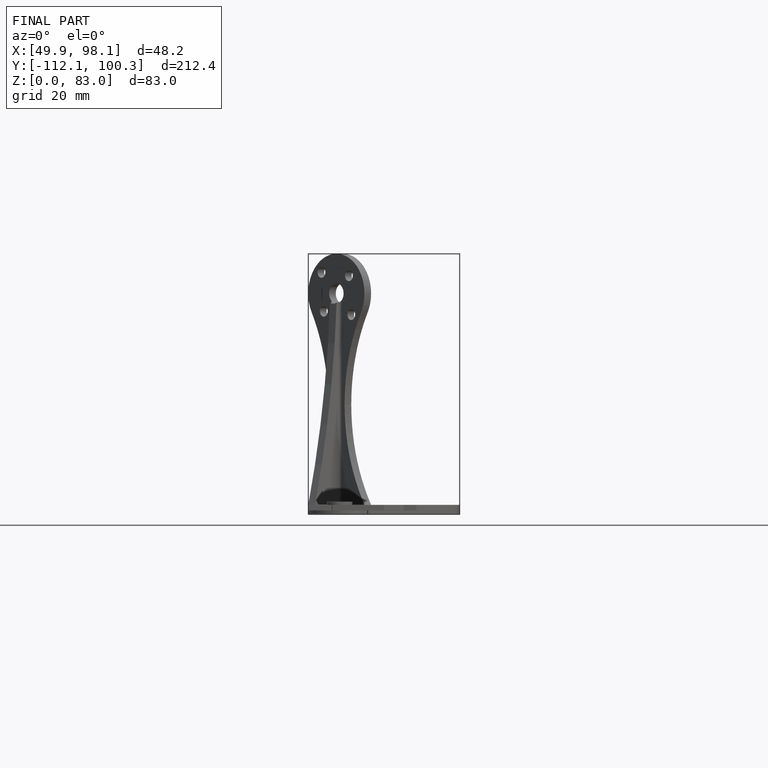
[diagram: finished part — front view with bounding-box wireframe]
